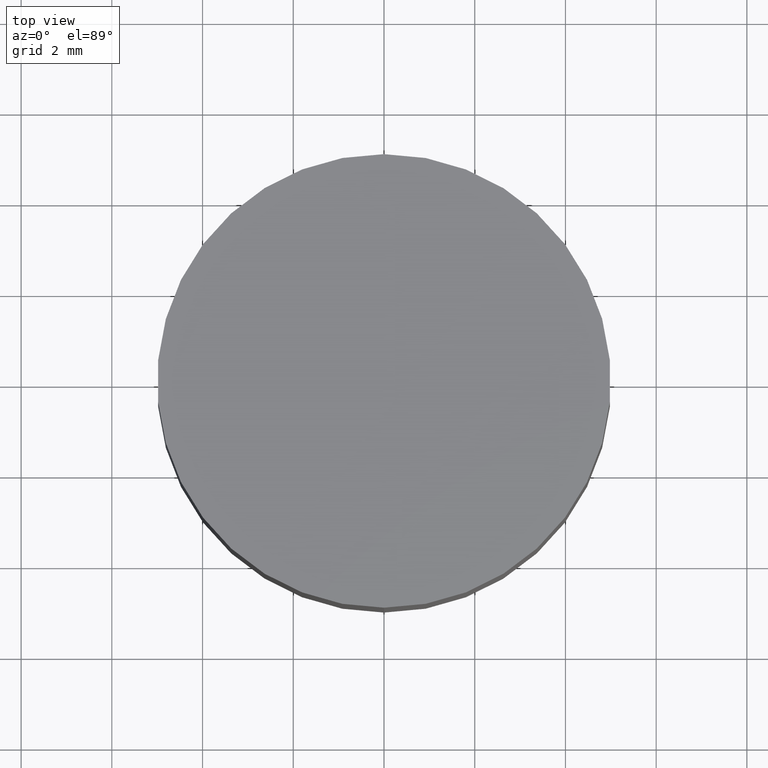
[diagram: clean part render]
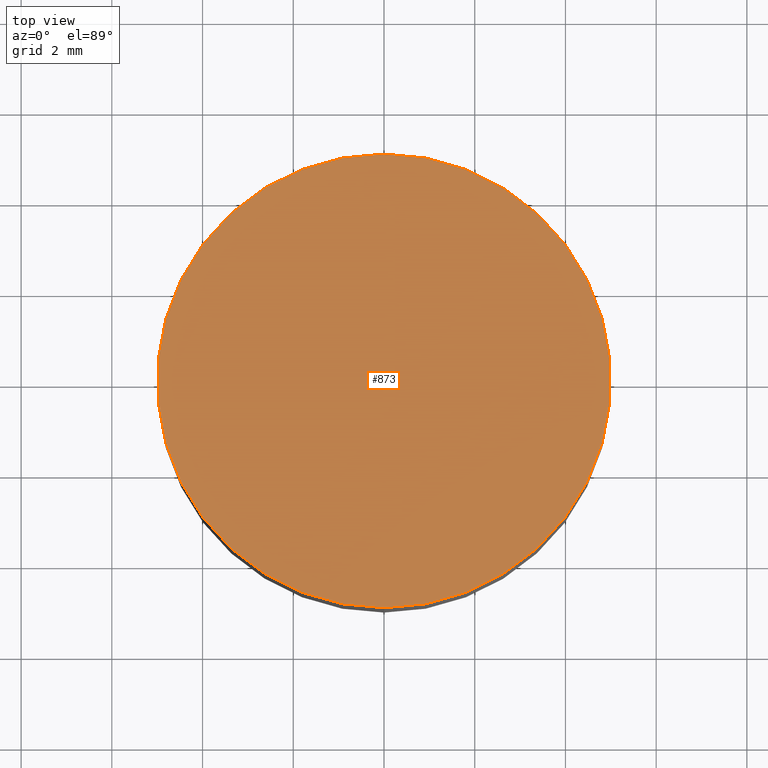
[diagram: same view with one face highlighted and labeled with its STEP entity id]
A machine part, top view. The second image highlights one B-rep face of the part: STEP entity #873.
In plain terms, the highlighted planar face has unit normal (0, 0, 1).
Its self-contained STEP definition (entity closure, byte-faithful):
#69 = CIRCLE ( 'NONE', #97, 5.000000000000000000 ) ;
#97 = AXIS2_PLACEMENT_3D ( 'NONE', #469, #393, #723 ) ;
#133 = FACE_OUTER_BOUND ( 'NONE', #402, .T. ) ;
#316 = ORIENTED_EDGE ( 'NONE', *, *, #762, .F. ) ;
#382 = CARTESIAN_POINT ( 'NONE',  ( 0.000000000000000000, 0.000000000000000000, 7.799999999999999822 ) ) ;
#393 = DIRECTION ( 'NONE',  ( 0.000000000000000000, 0.000000000000000000, -1.000000000000000000 ) ) ;
#395 = VERTEX_POINT ( 'NONE', #703 ) ;
#402 = EDGE_LOOP ( 'NONE', ( #805, #316 ) ) ;
#427 = CARTESIAN_POINT ( 'NONE',  ( 0.000000000000000000, 0.000000000000000000, 7.799999999999999822 ) ) ;
#469 = CARTESIAN_POINT ( 'NONE',  ( 0.000000000000000000, 0.000000000000000000, 7.799999999999999822 ) ) ;
#477 = VERTEX_POINT ( 'NONE', #787 ) ;
#573 = CIRCLE ( 'NONE', #1007, 5.000000000000000000 ) ;
#703 = CARTESIAN_POINT ( 'NONE',  ( 6.123233995736766282E-16, -5.000000000000000000, 7.799999999999999822 ) ) ;
#712 = DIRECTION ( 'NONE',  ( 0.000000000000000000, 0.000000000000000000, -1.000000000000000000 ) ) ;
#723 = DIRECTION ( 'NONE',  ( 0.000000000000000000, 1.000000000000000000, 0.000000000000000000 ) ) ;
#762 = EDGE_CURVE ( 'NONE', #395, #477, #573, .T. ) ;
#766 = DIRECTION ( 'NONE',  ( 0.000000000000000000, 0.000000000000000000, 1.000000000000000000 ) ) ;
#787 = CARTESIAN_POINT ( 'NONE',  ( 0.000000000000000000, 5.000000000000000000, 7.799999999999999822 ) ) ;
#805 = ORIENTED_EDGE ( 'NONE', *, *, #995, .F. ) ;
#828 = DIRECTION ( 'NONE',  ( 1.000000000000000000, 0.000000000000000000, 0.000000000000000000 ) ) ;
#832 = PLANE ( 'NONE',  #972 ) ;
#873 = ADVANCED_FACE ( 'NONE', ( #133 ), #832, .T. ) ;
#877 = DIRECTION ( 'NONE',  ( 0.000000000000000000, 1.000000000000000000, 0.000000000000000000 ) ) ;
#972 = AXIS2_PLACEMENT_3D ( 'NONE', #427, #766, #828 ) ;
#995 = EDGE_CURVE ( 'NONE', #477, #395, #69, .T. ) ;
#1007 = AXIS2_PLACEMENT_3D ( 'NONE', #382, #712, #877 ) ;